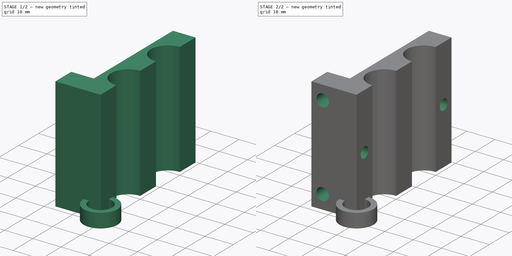
[diagram: build sequence overview — one tinted view per stage of 2, left to right]
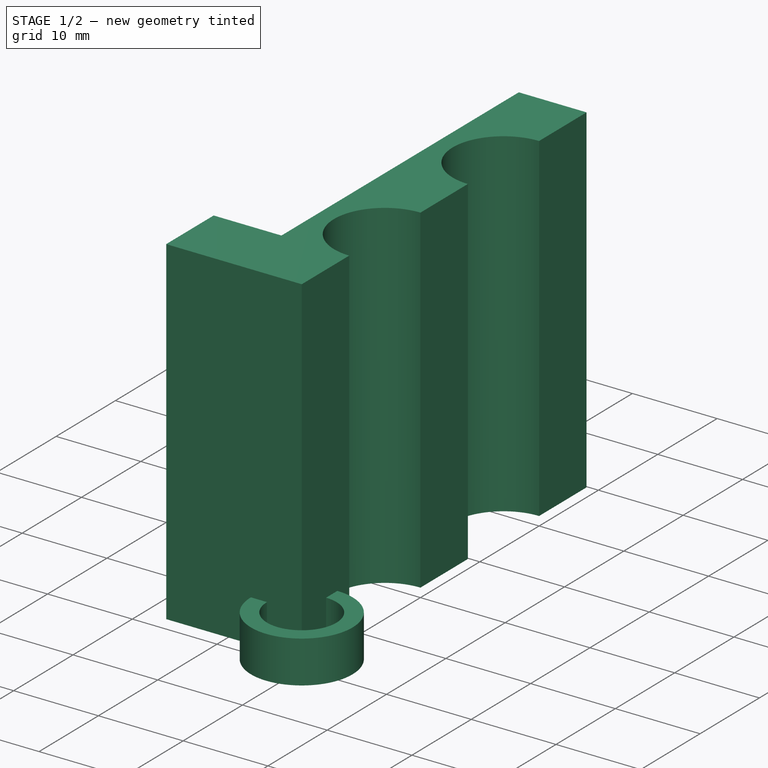
[diagram: stage 1 of 2 — iso view after this stage's code; geometry added in this stage tinted green]
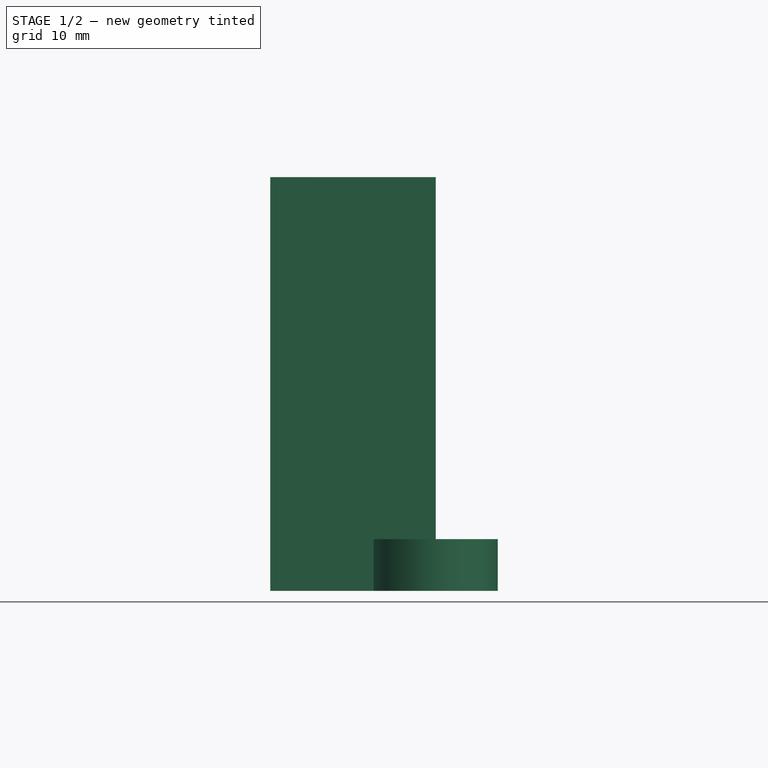
[diagram: stage 1 of 2 — front view after this stage's code; geometry added in this stage tinted green]
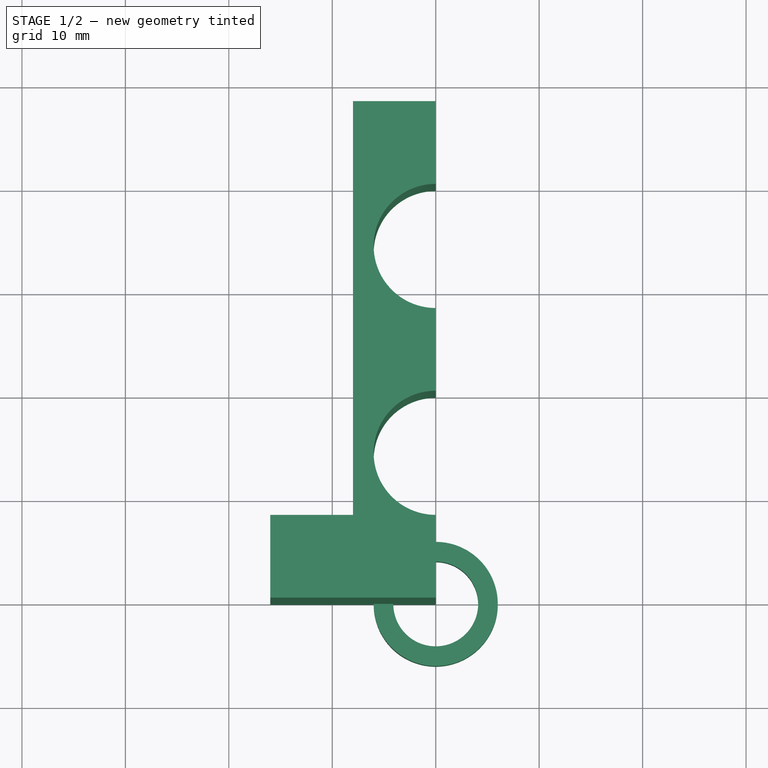
[diagram: stage 1 of 2 — top view after this stage's code; geometry added in this stage tinted green]
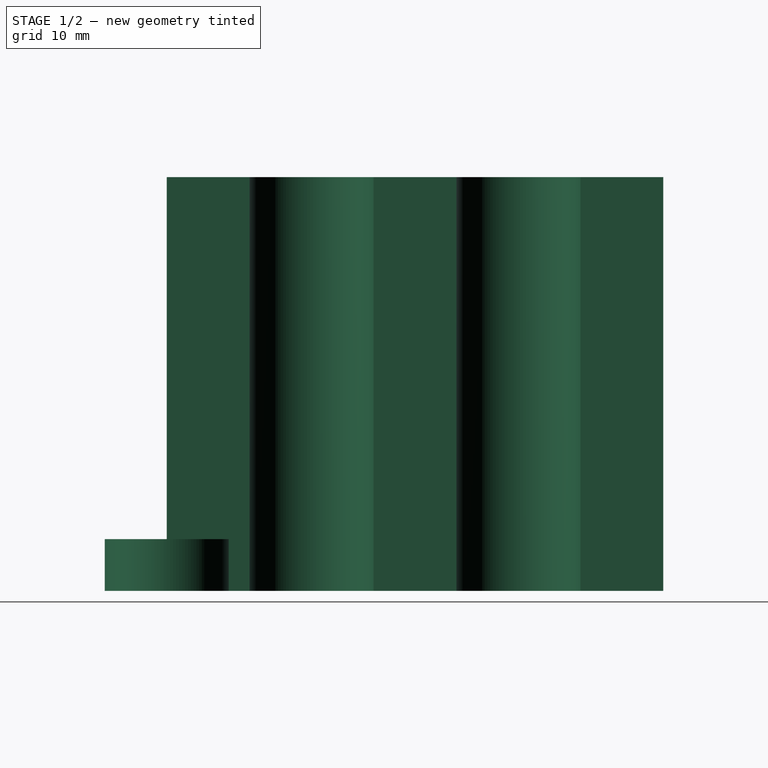
[diagram: stage 1 of 2 — right view after this stage's code; geometry added in this stage tinted green]
FCSTD DOCUMENT  (FreeCAD 0.18R14555 (Git shallow))
Label: Mount
License: All rights reserved
LicenseURL: http://en.wikipedia.org/wiki/All_rights_reserved
objects: Sketcher::SketchObject×4, PartDesign::Pad×2, PartDesign::Hole×2, PartDesign::Body×2
note: 14 computed .brp shape members not serialized (recipe doc carries the construction recipe); baked Part::Feature solids carry a one-line shape summary decoded from their .brp

FEATURE [Sketcher::SketchObject] Sketch003
  MapMode = 5
  Support = -> [XY_Plane001]
  sketch-geometry (10):
    g0: LineSegment StartX=-16 StartY=8 StartZ=0 EndX=-16 EndY=0 EndZ=0
    g1: LineSegment StartX=0 StartY=0 StartZ=0 EndX=0 EndY=8 EndZ=0
    g2: LineSegment StartX=-16 StartY=8 StartZ=0 EndX=-8 EndY=8 EndZ=0
    g3: LineSegment StartX=-8 StartY=48 StartZ=0 EndX=-8 EndY=8 EndZ=0
    g4: LineSegment StartX=-16 StartY=0 StartZ=0 EndX=0 EndY=0 EndZ=0
    g5: LineSegment StartX=-8 StartY=48 StartZ=0 EndX=0 EndY=48 EndZ=0
    g6: LineSegment StartX=4e-16 StartY=48 StartZ=0 EndX=4e-16 EndY=40 EndZ=0
    g7: LineSegment StartX=0 StartY=28 StartZ=0 EndX=0 EndY=20 EndZ=0
    g8: ArcOfCircle CenterX=0 CenterY=34 CenterZ=0 NormalX=0 NormalY=0 NormalZ=1 AngleXU=0 Radius=6 StartAngle=1.5708 EndAngle=4.71239
    g9: ArcOfCircle CenterX=0 CenterY=14 CenterZ=0 NormalX=0 NormalY=0 NormalZ=1 AngleXU=0 Radius=6 StartAngle=1.5708 EndAngle=4.71239
  constraints (31):
    c: Coincident(g3,g5)
    c: Coincident(g6,g5)
    c: Coincident(g1,g-1)
    c: Vertical(g7)
    c: Vertical(g6)
    c: Vertical(g1)
    c: Vertical(g3)
    c: Vertical(g0)
    c: Horizontal(g5)
    c: Horizontal(g2)
    c: Horizontal(g4)
    c: Coincident(g3,g2)
    c: Coincident(g2,g0)
    c: Coincident(g0,g4)
    c: Coincident(g4,g1)
    c: Coincident(g8,g6)
    c: Coincident(g8,g7)
    c: Coincident(g9,g1)
    c: Coincident(g9,g7)
    c: Equal(g9,g8)
    c: Radius(g9) = 6
    c: Vertical(g8,g9)
    c: PointOnObject(g7,g-2)
    c: PointOnObject(g6,g-2)
    c: PointOnObject(g9,g-2)
    c: DistanceY(g6,g6) = 8
    c: DistanceY(g9,g8) = 20
    c: Equal(g6,g0)
    c: DistanceX(g5,g5) = 8
    c: DistanceX(g2,g2) = 8
    c: Equal(g1,g6)
FEATURE [PartDesign::Pad] Pad001
  Length = 40
  Length2 = 100
  Profile = -> Sketch003
  Type = 0
FEATURE [PartDesign::Body] Body001  label="Mount"
  Group = -> [Sketch003,Pad001,Sketch004,Sketch005,Hole003,Hole]
  Origin = -> Origin001
  Tip = -> Hole
FEATURE [Sketcher::SketchObject] Sketch
  MapMode = 5
  Support = -> [XY_Plane]
  sketch-geometry (2):
    g0: Circle CenterX=0 CenterY=0 CenterZ=0 NormalX=0 NormalY=0 NormalZ=1 AngleXU=0 Radius=4.1
    g1: Circle CenterX=0 CenterY=0 CenterZ=0 NormalX=0 NormalY=0 NormalZ=1 AngleXU=0 Radius=6
  constraints (4):
    c: Coincident(g-1,g0)
    c: Coincident(g-1,g1)
    c: Radius(g1) = 6
    c: Radius(g0) = 4.1
FEATURE [PartDesign::Pad] Pad
  Length = 5
  Length2 = 100
  Profile = -> Sketch
  Type = 0
FEATURE [PartDesign::Body] Body  label="Adapter"
  Group = -> [Sketch,Pad]
  Origin = -> Origin
  Tip = -> Pad
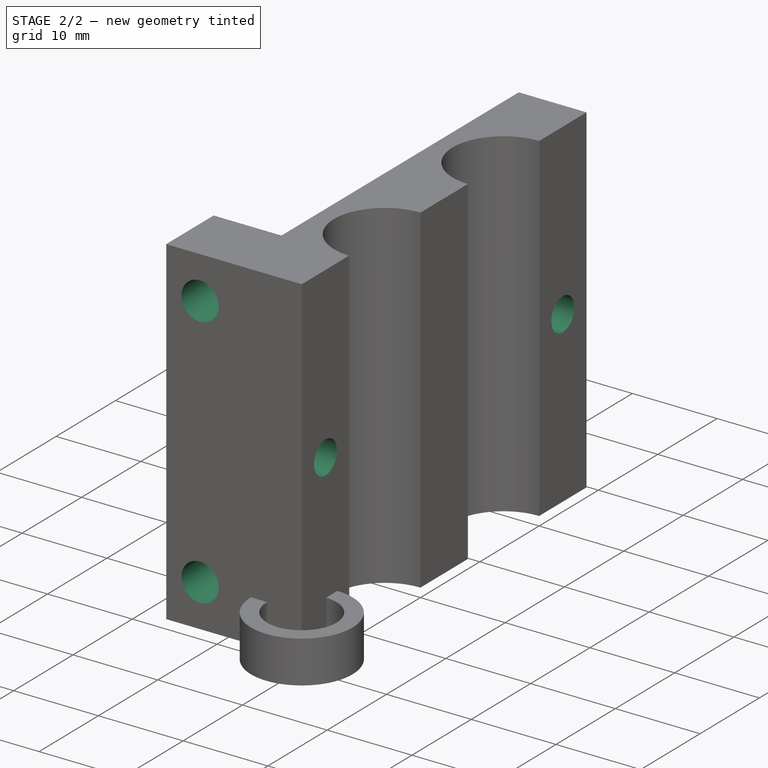
[diagram: stage 2 of 2 — iso view after this stage's code; geometry added in this stage tinted green]
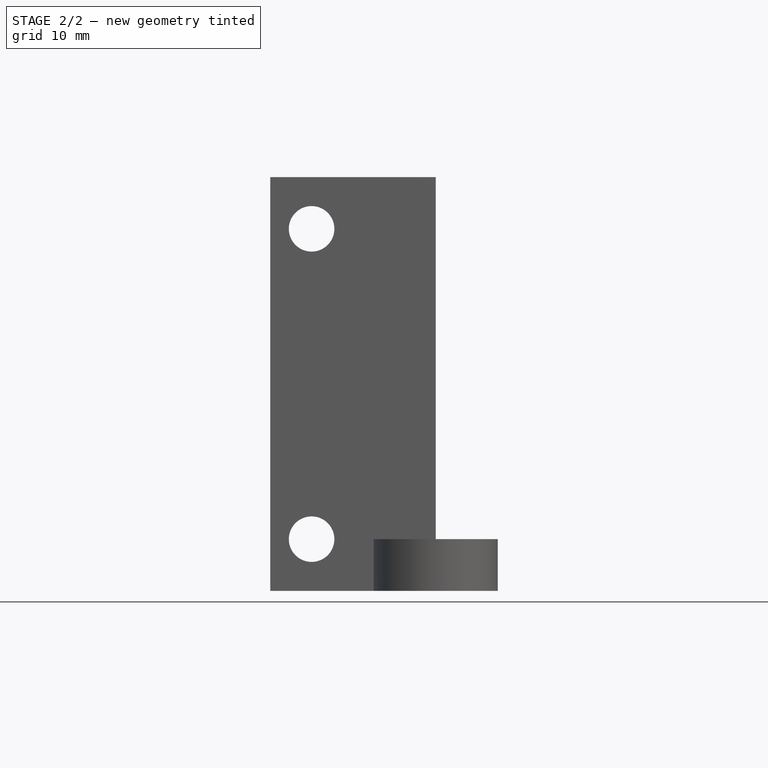
[diagram: stage 2 of 2 — front view after this stage's code; geometry added in this stage tinted green]
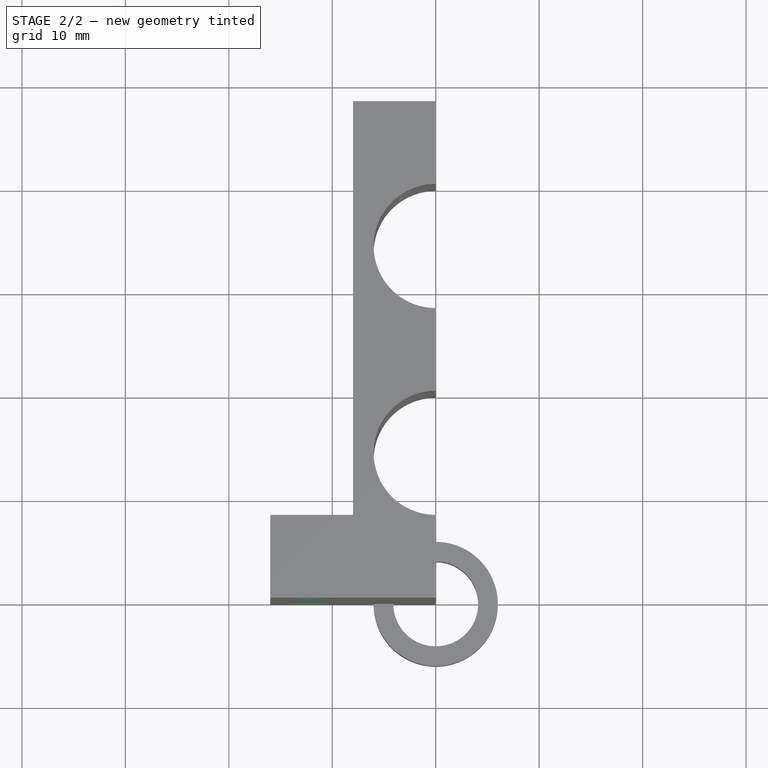
[diagram: stage 2 of 2 — top view after this stage's code; geometry added in this stage tinted green]
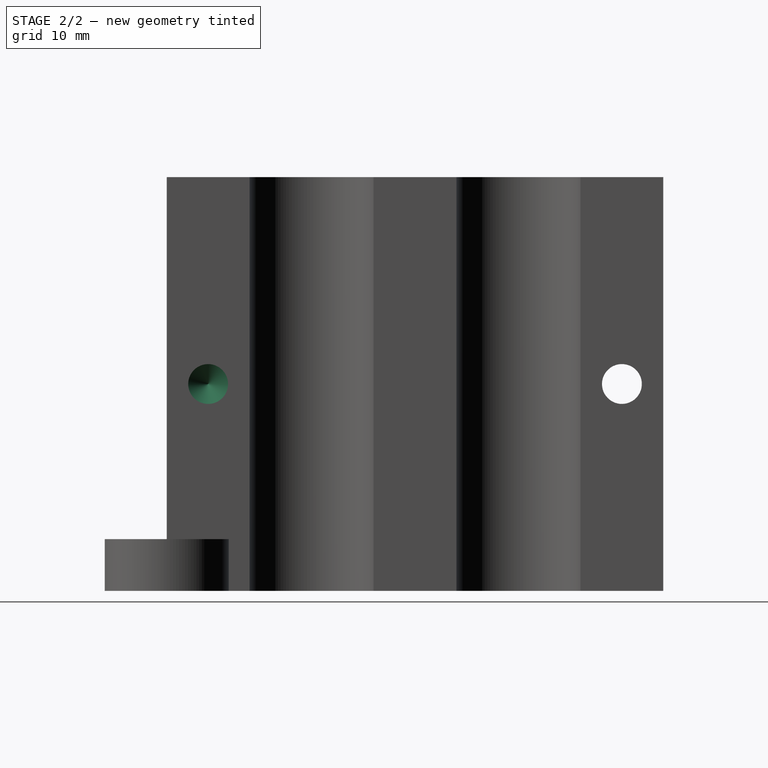
[diagram: stage 2 of 2 — right view after this stage's code; geometry added in this stage tinted green]
FEATURE [Sketcher::SketchObject] Sketch004
  ExternalGeometry = -> [Pad001]
  MapMode = 5
  Placement = pos=(4e-16,0,0) rot=(0.57735,0.57735,0.57735;2.0944rad)
  Support = -> [Pad001]
  sketch-geometry (7):
    g0: Circle CenterX=4 CenterY=20 CenterZ=0 NormalX=0 NormalY=0 NormalZ=1 AngleXU=0 Radius=2
    g1: Circle CenterX=44 CenterY=20 CenterZ=0 NormalX=0 NormalY=0 NormalZ=1 AngleXU=0 Radius=2
    g2: LineSegment [constr] StartX=0 StartY=20 StartZ=0 EndX=48 EndY=20 EndZ=0
    g3: LineSegment [constr] StartX=0 StartY=40 StartZ=0 EndX=4 EndY=20 EndZ=0
    g4: LineSegment [constr] StartX=8 StartY=40 StartZ=0 EndX=4 EndY=20 EndZ=0
    g5: LineSegment [constr] StartX=40 StartY=40 StartZ=0 EndX=44 EndY=20 EndZ=0
    g6: LineSegment [constr] StartX=44 StartY=20 StartZ=0 EndX=48 EndY=40 EndZ=0
  constraints (17):
    c: Horizontal(g0,g1)
    c: Vertical(g2,g-4)
    c: Symmetric(g-3,g-1,g2)
    c: PointOnObject(g0,g2)
    c: Horizontal(g2)
    c: Equal(g0,g1)
    c: Radius(g0) = 2
    c: Coincident(g3,g-3)
    c: Coincident(g-3,g4)
    c: Coincident(g4,g3)
    c: Coincident(g4,g0)
    c: Equal(g4,g3)
    c: Coincident(g5,g6)
    c: Coincident(g6,g-4)
    c: Coincident(g5,g-4)
    c: Coincident(g5,g1)
    c: Equal(g6,g5)
FEATURE [Sketcher::SketchObject] Sketch005
  MapMode = 5
  Placement = pos=(0,8,0) rot=(0,0.707107,0.707107;3.14159rad)
  sketch-geometry (5):
    g0: Circle CenterX=12 CenterY=5 CenterZ=0 NormalX=0 NormalY=0 NormalZ=1 AngleXU=0 Radius=2
    g1: Circle CenterX=12 CenterY=35 CenterZ=0 NormalX=0 NormalY=0 NormalZ=1 AngleXU=0 Radius=2
    g2: LineSegment [constr] StartX=8 StartY=40 StartZ=0 EndX=12 EndY=35 EndZ=0
    g3: LineSegment [constr] StartX=12 StartY=35 StartZ=0 EndX=16 EndY=40 EndZ=0
    g4: LineSegment [constr] StartX=8 StartY=20 StartZ=0 EndX=16 EndY=20 EndZ=0
  constraints (6):
    c: Equal(g0,g1)
    c: Radius(g1) = 2
    c: Coincident(g2,g3)
    c: Coincident(g2,g1)
    c: Equal(g3,g2)
    c: Symmetric(g1,g0,g4)
FEATURE [PartDesign::Hole] Hole003
  BaseFeature = -> Pad001
  Depth = 25
  DepthType = 0
  Diameter = 4.4
  DrillPoint = 1
  DrillPointAngle = 118
  HoleCutCountersinkAngle = 90
  HoleCutDepth = 0
  HoleCutDiameter = 4
  HoleCutType = 0
  ModelActualThread = false
  Profile = -> Sketch005
  Tapered = false
  TaperedAngle = 90
  ThreadAngle = 0
  ThreadClass = 0
  ThreadCutOffInner = 0
  ThreadCutOffOuter = 0
  ThreadDirection = 0
  ThreadFit = 0
  ThreadPitch = 0
  ThreadSize = 5
  ThreadType = 1
  Threaded = false
FEATURE [PartDesign::Hole] Hole
  BaseFeature = -> Hole003
  Depth = 10
  DepthType = 0
  Diameter = 3.85
  DrillPoint = 1
  DrillPointAngle = 118
  HoleCutCountersinkAngle = 90
  HoleCutDepth = 0
  HoleCutDiameter = 3.5
  HoleCutType = 0
  ModelActualThread = false
  Profile = -> Sketch004
  Tapered = false
  TaperedAngle = 90
  ThreadAngle = 0
  ThreadClass = 0
  ThreadCutOffInner = 0
  ThreadCutOffOuter = 0
  ThreadDirection = 0
  ThreadFit = 0
  ThreadPitch = 0
  ThreadSize = 4
  ThreadType = 1
  Threaded = false
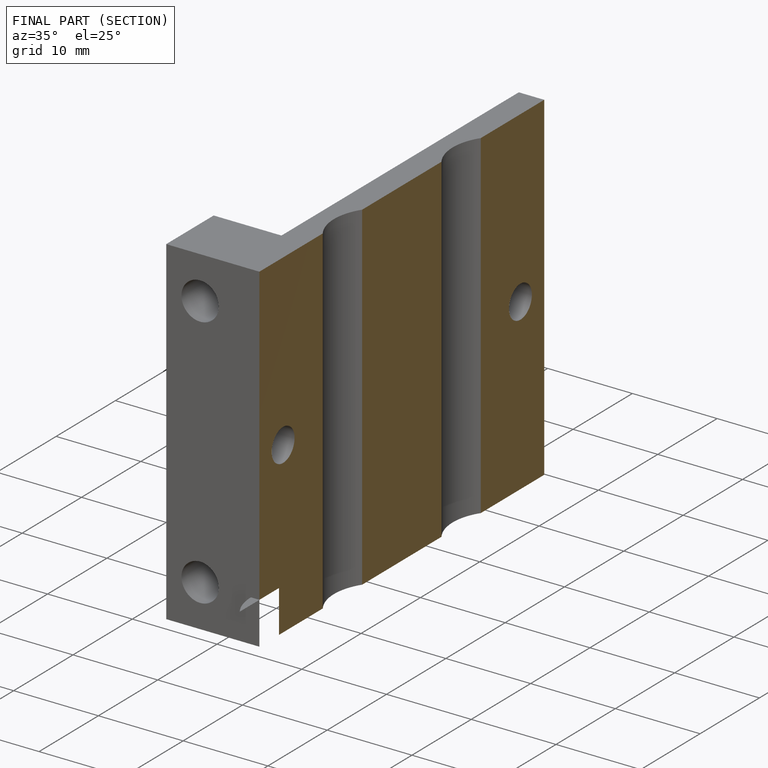
[diagram: finished part — half-section view (interior)]
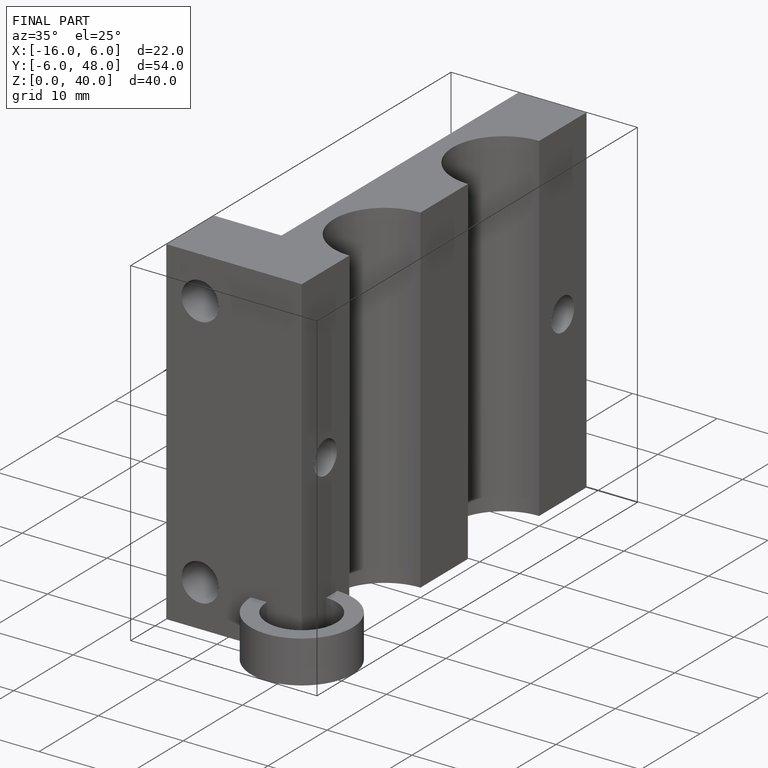
[diagram: finished part — iso view with bounding-box wireframe]
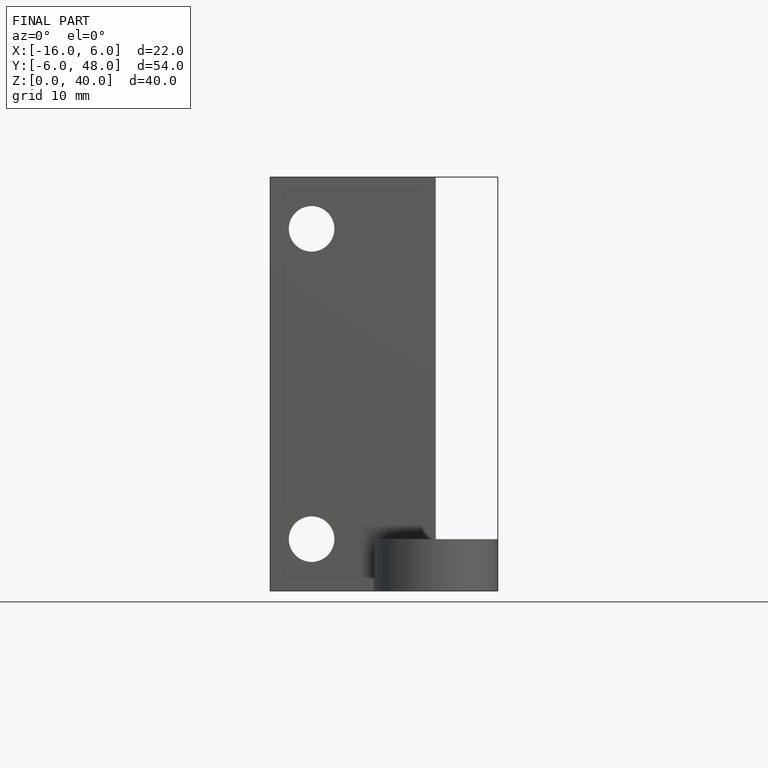
[diagram: finished part — front view with bounding-box wireframe]
